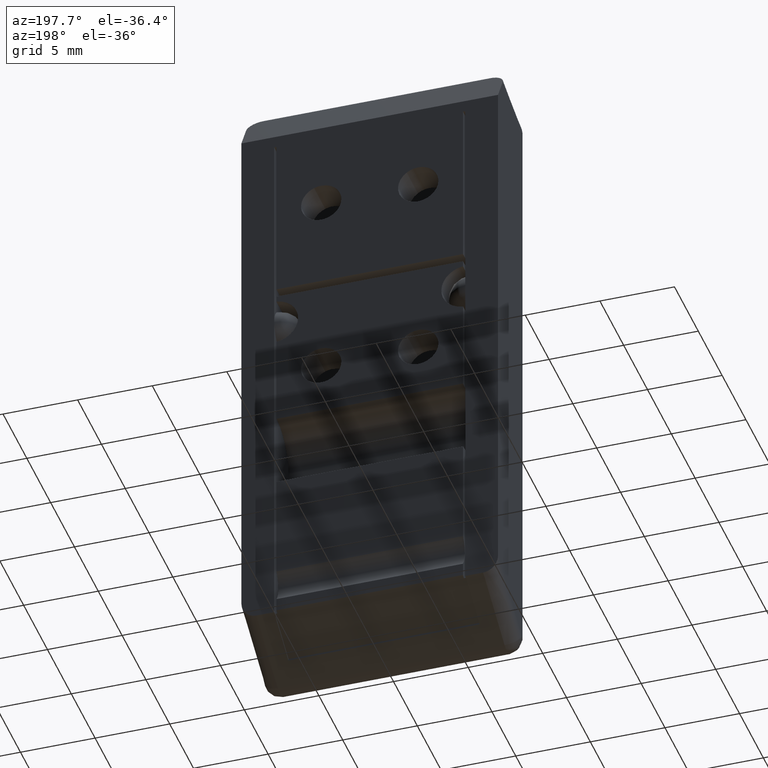
[diagram: clean part render]
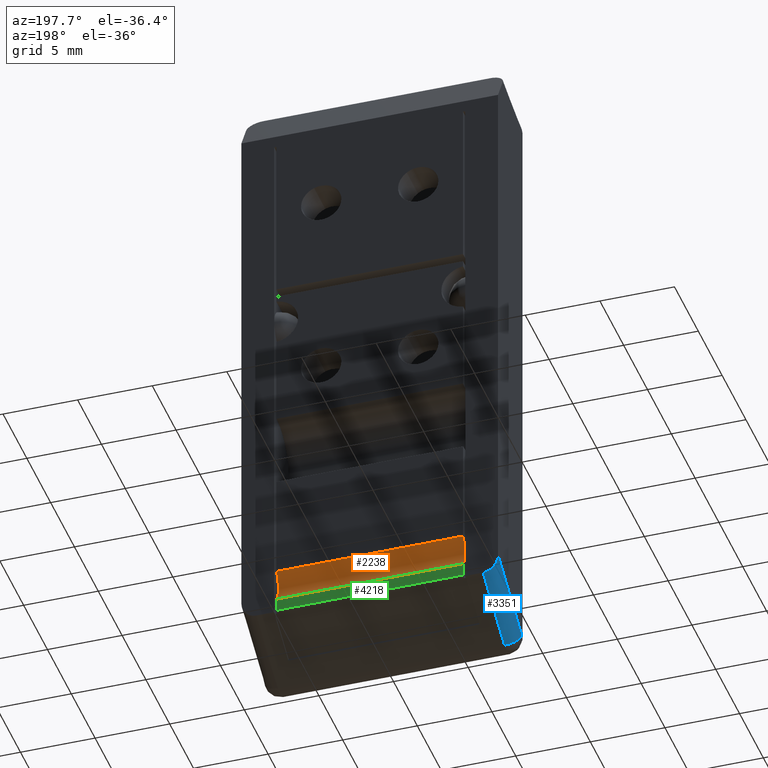
[diagram: same view with three faces highlighted in distinct colors, each labeled with its STEP entity id]
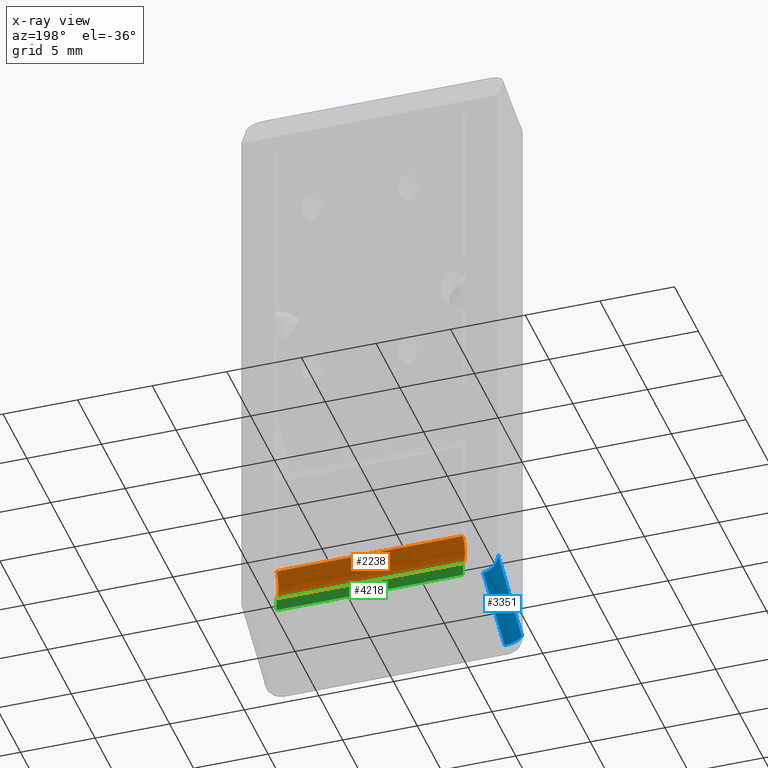
[diagram: x-ray of the same camera — body ghosted, the three highlighted faces saturated]
A machine part, auxiliary view with three faces highlighted in distinct colors.
The next image is the same camera in x-ray (body ghosted, the three faces saturated) — at least one of them is partly hidden behind the body in this view.
Their STEP definitions:

[orange] entity #2238 — the highlighted face is a freeform B-spline surface patch.
#2178=CARTESIAN_POINT('',(6.562500000000001,0.044147890599953,5.977341021068447));
#2179=CARTESIAN_POINT('',(-6.570312500000001,0.044147890599953,5.977341021068447));
#2180=CARTESIAN_POINT('',(6.562500000000002,-1.027577789024667,4.802763254594797));
#2181=CARTESIAN_POINT('',(-6.570312500000000,-1.027577789024667,4.802763254594797));
#2182=CARTESIAN_POINT('',(6.562499999999999,0.072820508318627,3.655003502266348));
#2183=CARTESIAN_POINT('',(-6.570312500000001,0.072820508318627,3.655003502266348));
#2191=(BOUNDED_SURFACE()B_SPLINE_SURFACE(1,2,((#2178,#2180,#2182),(#2179,#2181,#2183)),.UNSPECIFIED.,.F.,.F.,.U.)B_SPLINE_SURFACE_WITH_KNOTS((2,2),(3,3),(0.0,13.132812500000000),(0.0,2.684466600949536),.UNSPECIFIED.)GEOMETRIC_REPRESENTATION_ITEM()RATIONAL_B_SPLINE_SURFACE(((1.0,0.728250422619424,0.994308136413598),(1.0,0.728250422619424,0.994308136413598)))REPRESENTATION_ITEM('')SURFACE());
#2192=CARTESIAN_POINT('',(6.250000000000000,0.0,3.736000000000105));
#2193=VERTEX_POINT('',#2192);
#2194=CARTESIAN_POINT('',(-6.250000000000000,-3.409978E-032,3.736000000000105));
#2195=VERTEX_POINT('',#2194);
#2196=CARTESIAN_POINT('',(6.250000000000000,0.0,3.736000000000105));
#2197=CARTESIAN_POINT('',(-6.250000000000000,-3.409978E-032,3.736000000000105));
#2198=QUASI_UNIFORM_CURVE('',1,(#2196,#2197),.UNSPECIFIED.,.F.,.U.);
#2199=EDGE_CURVE('',#2193,#2195,#2198,.T.);
#2200=ORIENTED_EDGE('',*,*,#2199,.T.);
#2201=CARTESIAN_POINT('',(-6.250000000000000,-4.930381E-032,5.927000000000110));
#2202=VERTEX_POINT('',#2201);
#2203=CARTESIAN_POINT('',(-6.250000000000000,-1.517883E-015,5.927000000000111));
#2204=CARTESIAN_POINT('',(-6.250000000000001,-0.923202268357292,4.831500000000107));
#2205=CARTESIAN_POINT('',(-6.250000000000000,1.301043E-015,3.736000000000106));
#2213=(BOUNDED_CURVE()B_SPLINE_CURVE(2,(#2203,#2204,#2205),.UNSPECIFIED.,.F.,.U.)CURVE()GEOMETRIC_REPRESENTATION_ITEM()QUASI_UNIFORM_CURVE()RATIONAL_B_SPLINE_CURVE((1.0,0.764678675986619,1.0))REPRESENTATION_ITEM(''));
#2214=EDGE_CURVE('',#2202,#2195,#2213,.T.);
#2215=ORIENTED_EDGE('',*,*,#2214,.F.);
#2216=CARTESIAN_POINT('',(6.250000000000000,-4.930381E-032,5.927000000000110));
#2217=VERTEX_POINT('',#2216);
#2218=CARTESIAN_POINT('',(6.250000000000000,-4.930381E-032,5.927000000000110));
#2219=CARTESIAN_POINT('',(-6.250000000000000,-4.930381E-032,5.927000000000110));
#2220=QUASI_UNIFORM_CURVE('',1,(#2218,#2219),.UNSPECIFIED.,.F.,.U.);
#2221=EDGE_CURVE('',#2217,#2202,#2220,.T.);
#2222=ORIENTED_EDGE('',*,*,#2221,.F.);
#2223=CARTESIAN_POINT('',(6.250000000000000,1.301043E-015,3.736000000000106));
#2224=CARTESIAN_POINT('',(6.250000000000000,-0.923202268357292,4.831500000000108));
#2225=CARTESIAN_POINT('',(6.250000000000000,-1.734723E-015,5.927000000000111));
#2233=(BOUNDED_CURVE()B_SPLINE_CURVE(2,(#2223,#2224,#2225),.UNSPECIFIED.,.F.,.U.)CURVE()GEOMETRIC_REPRESENTATION_ITEM()QUASI_UNIFORM_CURVE()RATIONAL_B_SPLINE_CURVE((1.0,0.764678675986619,1.0))REPRESENTATION_ITEM(''));
#2234=EDGE_CURVE('',#2193,#2217,#2233,.T.);
#2235=ORIENTED_EDGE('',*,*,#2234,.F.);
#2236=EDGE_LOOP('',(#2200,#2215,#2222,#2235));
#2237=FACE_OUTER_BOUND('',#2236,.T.);
#2238=ADVANCED_FACE('',(#2237),#2191,.F.);

[blue] entity #3351 — the highlighted face is a freeform B-spline surface patch.
#3291=CARTESIAN_POINT('',(-7.591273464501627,0.624969961668589,3.092859958339189));
#3292=CARTESIAN_POINT('',(-7.591273464501627,-4.628155038331415,0.060055791672634));
#3293=CARTESIAN_POINT('',(-8.663601342011752,0.629648890534935,3.084755578085706));
#3294=CARTESIAN_POINT('',(-8.663601342011752,-4.623476109465070,0.051951411419149));
#3295=CARTESIAN_POINT('',(-8.598134798421866,0.094476401783747,4.011728711026598));
#3296=CARTESIAN_POINT('',(-8.598134798421867,-5.158648598216258,0.978924544360043));
#3304=(BOUNDED_SURFACE()B_SPLINE_SURFACE(1,2,((#3291,#3293,#3295),(#3292,#3294,#3296)),.UNSPECIFIED.,.F.,.F.,.U.)B_SPLINE_SURFACE_WITH_KNOTS((2,2),(3,3),(0.0,6.065741783077737),(0.0,1.0),.UNSPECIFIED.)GEOMETRIC_REPRESENTATION_ITEM()RATIONAL_B_SPLINE_SURFACE(((1.0,0.681998360062499,1.0),(1.0,0.681998360062499,1.0)))REPRESENTATION_ITEM('')SURFACE());
#3305=CARTESIAN_POINT('',(-7.600000000000000,0.0,2.732000000000000));
#3306=VERTEX_POINT('',#3305);
#3307=CARTESIAN_POINT('',(-8.600000000000000,0.0,3.886692070544245));
#3308=VERTEX_POINT('',#3307);
#3309=CARTESIAN_POINT('',(-7.600000000000000,0.0,2.732000000000001));
#3310=CARTESIAN_POINT('',(-8.600000000000000,0.0,2.732000000000001));
#3311=CARTESIAN_POINT('',(-8.600000000000000,0.0,3.886692070544245));
#3319=(BOUNDED_CURVE()B_SPLINE_CURVE(2,(#3309,#3310,#3311),.UNSPECIFIED.,.F.,.U.)CURVE()GEOMETRIC_REPRESENTATION_ITEM()QUASI_UNIFORM_CURVE()RATIONAL_B_SPLINE_CURVE((1.0,0.707106781186547,1.0))REPRESENTATION_ITEM(''));
#3320=EDGE_CURVE('',#3306,#3308,#3319,.T.);
#3321=ORIENTED_EDGE('',*,*,#3320,.F.);
#3322=CARTESIAN_POINT('',(-7.600000000000000,-4.500011000282360,0.133993649170419));
#3323=VERTEX_POINT('',#3322);
#3324=CARTESIAN_POINT('',(-7.600000000000000,-4.500011000282360,0.133993649170419));
#3325=CARTESIAN_POINT('',(-7.600000000000000,0.0,2.732000000000000));
#3326=QUASI_UNIFORM_CURVE('',1,(#3324,#3325),.UNSPECIFIED.,.F.,.U.);
#3327=EDGE_CURVE('',#3323,#3306,#3326,.T.);
#3328=ORIENTED_EDGE('',*,*,#3327,.F.);
#3329=CARTESIAN_POINT('',(-8.600000000000000,-5.0,1.000025403877686));
#3330=VERTEX_POINT('',#3329);
#3331=CARTESIAN_POINT('',(-7.600000000000000,-4.500011000282356,0.133993649170418));
#3332=CARTESIAN_POINT('',(-8.600000000000000,-4.500011000282356,0.133993649170418));
#3333=CARTESIAN_POINT('',(-8.600000000000000,-5.0,1.000025403877686));
#3341=(BOUNDED_CURVE()B_SPLINE_CURVE(2,(#3331,#3332,#3333),.UNSPECIFIED.,.F.,.U.)CURVE()GEOMETRIC_REPRESENTATION_ITEM()QUASI_UNIFORM_CURVE()RATIONAL_B_SPLINE_CURVE((1.0,0.707106781186548,1.0))REPRESENTATION_ITEM(''));
#3342=EDGE_CURVE('',#3323,#3330,#3341,.T.);
#3343=ORIENTED_EDGE('',*,*,#3342,.T.);
#3344=CARTESIAN_POINT('',(-8.600000000000000,0.0,3.886692070544245));
#3345=CARTESIAN_POINT('',(-8.600000000000000,-5.0,1.000025403877686));
#3346=QUASI_UNIFORM_CURVE('',1,(#3344,#3345),.UNSPECIFIED.,.F.,.U.);
#3347=EDGE_CURVE('',#3308,#3330,#3346,.T.);
#3348=ORIENTED_EDGE('',*,*,#3347,.F.);
#3349=EDGE_LOOP('',(#3321,#3328,#3343,#3348));
#3350=FACE_OUTER_BOUND('',#3349,.T.);
#3351=ADVANCED_FACE('',(#3350),#3304,.T.);

[green] entity #4218 — the highlighted face is a freeform B-spline surface patch.
#2192=CARTESIAN_POINT('',(6.250000000000000,0.0,3.736000000000105));
#2193=VERTEX_POINT('',#2192);
#2194=CARTESIAN_POINT('',(-6.250000000000000,-3.409978E-032,3.736000000000105));
#2195=VERTEX_POINT('',#2194);
#2196=CARTESIAN_POINT('',(6.250000000000000,0.0,3.736000000000105));
#2197=CARTESIAN_POINT('',(-6.250000000000000,-3.409978E-032,3.736000000000105));
#2198=QUASI_UNIFORM_CURVE('',1,(#2196,#2197),.UNSPECIFIED.,.F.,.U.);
#2199=EDGE_CURVE('',#2193,#2195,#2198,.T.);
#2309=CARTESIAN_POINT('',(-6.250000000000000,0.0,2.847469207054425));
#2310=VERTEX_POINT('',#2309);
#2316=CARTESIAN_POINT('',(6.250000000000000,0.0,2.847469207054425));
#2317=VERTEX_POINT('',#2316);
#2318=CARTESIAN_POINT('',(6.250000000000000,0.0,2.847469207054425));
#2319=CARTESIAN_POINT('',(-6.250000000000000,0.0,2.847469207054425));
#2320=QUASI_UNIFORM_CURVE('',1,(#2318,#2319),.UNSPECIFIED.,.F.,.U.);
#2321=EDGE_CURVE('',#2317,#2310,#2320,.T.);
#4199=CARTESIAN_POINT('',(-6.874374975772575,0.0,2.803086967381107));
#4200=CARTESIAN_POINT('',(6.874375311048702,0.0,2.803086967381107));
#4201=CARTESIAN_POINT('',(-6.874374975772575,0.0,3.780382207897086));
#4202=CARTESIAN_POINT('',(6.874375311048702,0.0,3.780382207897086));
#4203=B_SPLINE_SURFACE_WITH_KNOTS('',1,1,((#4199,#4201),(#4200,#4202)),.UNSPECIFIED.,.F.,.F.,.U.,(2,2),(2,2),(0.0,13.748750286821281),(0.041708214630187,0.958291755567491),.UNSPECIFIED.);
#4204=ORIENTED_EDGE('',*,*,#2199,.F.);
#4205=CARTESIAN_POINT('',(6.250000000000000,0.0,3.736000000000105));
#4206=CARTESIAN_POINT('',(6.250000000000000,0.0,2.847469207054425));
#4207=QUASI_UNIFORM_CURVE('',1,(#4205,#4206),.UNSPECIFIED.,.F.,.U.);
#4208=EDGE_CURVE('',#2193,#2317,#4207,.T.);
#4209=ORIENTED_EDGE('',*,*,#4208,.T.);
#4210=ORIENTED_EDGE('',*,*,#2321,.T.);
#4211=CARTESIAN_POINT('',(-6.250000000000000,0.0,2.847469207054425));
#4212=CARTESIAN_POINT('',(-6.250000000000000,-3.409978E-032,3.736000000000105));
#4213=QUASI_UNIFORM_CURVE('',1,(#4211,#4212),.UNSPECIFIED.,.F.,.U.);
#4214=EDGE_CURVE('',#2310,#2195,#4213,.T.);
#4215=ORIENTED_EDGE('',*,*,#4214,.T.);
#4216=EDGE_LOOP('',(#4204,#4209,#4210,#4215));
#4217=FACE_OUTER_BOUND('',#4216,.T.);
#4218=ADVANCED_FACE('',(#4217),#4203,.F.);